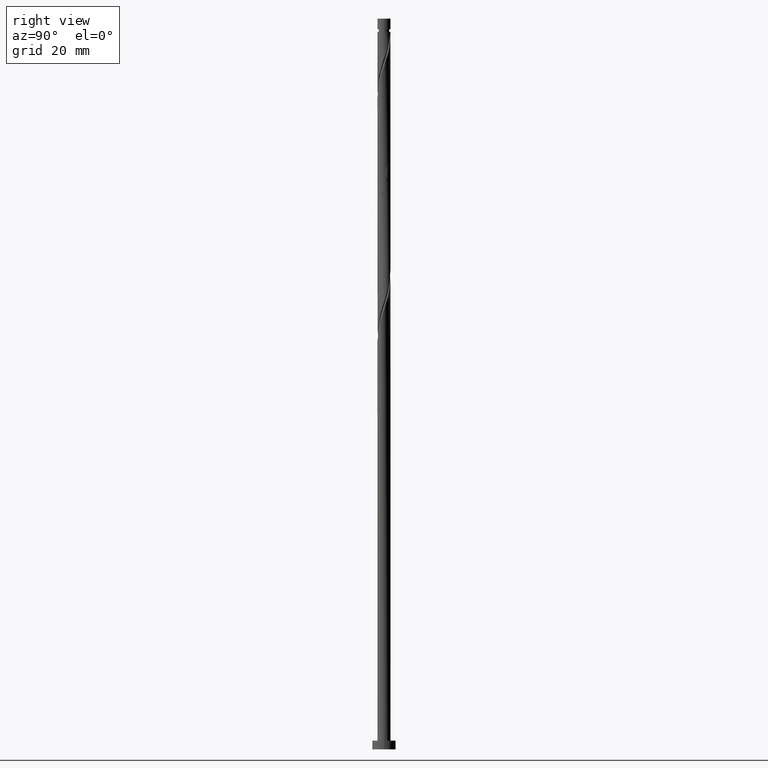
[diagram: clean part render]
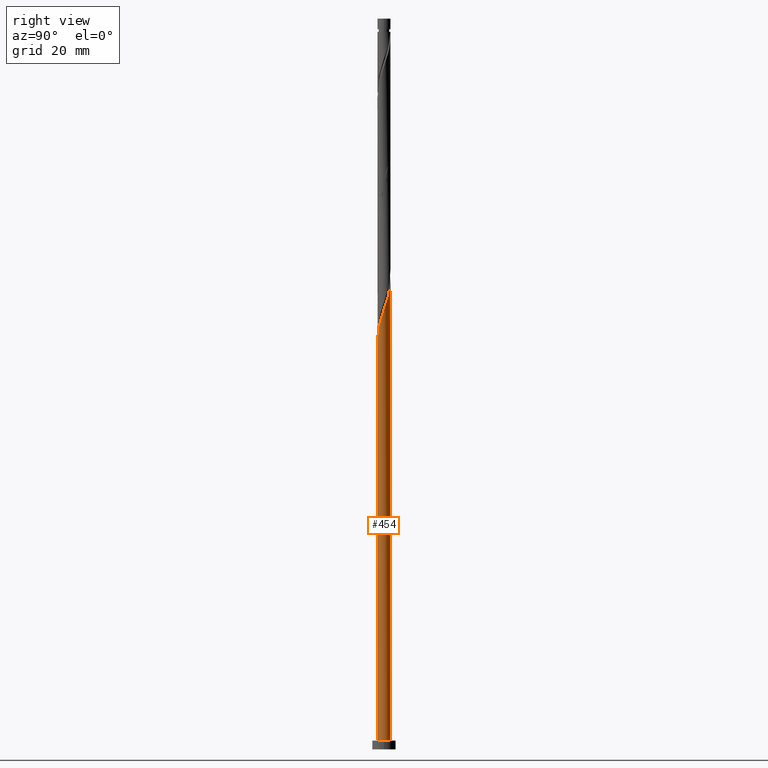
[diagram: same view with one face highlighted and labeled with its STEP entity id]
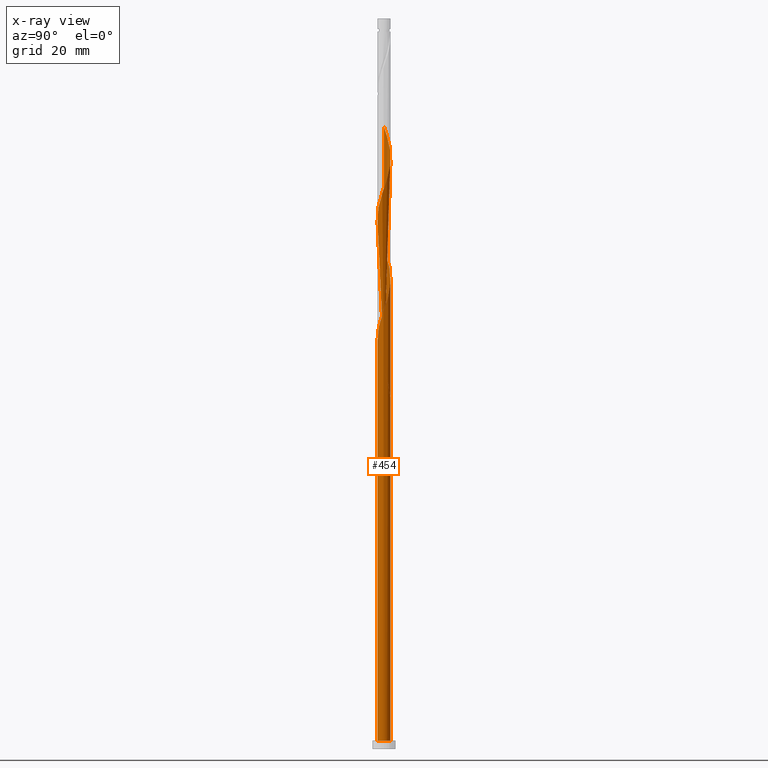
[diagram: x-ray of the same camera — body ghosted, the highlighted face saturated]
A machine part, right view. The second image highlights one B-rep face of the part: STEP entity #454.
The next image is the same camera in x-ray: the body ghosted, the highlighted face saturated — about 0% of this face is hidden behind the body in this view.
In plain terms, the highlighted cylindrical surface (bore or boss wall) has radius 2.25 mm, axis along (-0, -0, -1).
Its self-contained STEP definition (entity closure, byte-faithful):
#6 = CARTESIAN_POINT ( 'NONE',  ( 0.09295733002888968699, 2.248078943185473300, 160.5468287181052744 ) ) ;
#16 = CARTESIAN_POINT ( 'NONE',  ( 1.961678465785108960, -1.135321779518358776, 146.9250338463103844 ) ) ;
#27 = CARTESIAN_POINT ( 'NONE',  ( -2.048711887975463775, -0.9694934482717043611, 132.5019569232334504 ) ) ;
#34 = CARTESIAN_POINT ( 'NONE',  ( 2.221195012488833775, 0.4510328842429133789, 193.3993928206693340 ) ) ;
#41 = CARTESIAN_POINT ( 'NONE',  ( 0.8905897954905769298, 2.084223539436641737, 199.8096492309257428 ) ) ;
#46 = CARTESIAN_POINT ( 'NONE',  ( -2.176375940620510985, 0.6328710068109740794, 169.3609312822078437 ) ) ;
#50 = CARTESIAN_POINT ( 'NONE',  ( 2.242892684540275461, 0.1786964063313325746, 192.5981107693872900 ) ) ;
#52 = CYLINDRICAL_SURFACE ( 'NONE', #291, 2.250000000000000000 ) ;
#57 = CARTESIAN_POINT ( 'NONE',  ( -1.421172524092398470, 1.744353363503180265, 165.3545210257976237 ) ) ;
#80 = CARTESIAN_POINT ( 'NONE',  ( -2.134953450232146555, 0.7102631662573091198, 130.0981107693873184 ) ) ;
#91 = CARTESIAN_POINT ( 'NONE',  ( -1.757165075297675516, 1.431610577052242483, 127.6942646155411438 ) ) ;
#104 = DIRECTION ( 'NONE',  ( -2.739100365350735934E-29, -4.625929269271488320E-14, -1.000000000000000000 ) ) ;
#115 = CARTESIAN_POINT ( 'NONE',  ( -1.560331645388220112, -1.621069139919734337, 134.9058030770796393 ) ) ;
#128 = CARTESIAN_POINT ( 'NONE',  ( -0.8905897954905765967, -2.084223539436641737, 137.3096492309257428 ) ) ;
#138 = CARTESIAN_POINT ( 'NONE',  ( 0.4477443466979813547, 2.205000000000000515, 120.4827261540026768 ) ) ;
#148 = CARTESIAN_POINT ( 'NONE',  ( 2.250000000000000000, 0.000000000000000000, 3.000000000000000000 ) ) ;
#165 = CARTESIAN_POINT ( 'NONE',  ( 1.902938481636571311, 1.200552012661973977, 195.8032389745155797 ) ) ;
#173 = CARTESIAN_POINT ( 'NONE',  ( -0.8905897954905765967, -2.084223539436641737, 178.9763158975924284 ) ) ;
#174 = CIRCLE ( 'NONE', #399, 2.250000000000000000 ) ;
#178 = CARTESIAN_POINT ( 'NONE',  ( -1.632975368929374671, 1.571791777126894996, 166.1558030770796677 ) ) ;
#183 = CARTESIAN_POINT ( 'NONE',  ( 1.127044005484669764, 1.947375621111933519, 199.0083671796437272 ) ) ;
#189 = CARTESIAN_POINT ( 'NONE',  ( -1.421172524092398470, 1.744353363503180265, 207.0211876924642525 ) ) ;
#205 = ORIENTED_EDGE ( 'NONE', *, *, #948, .F. ) ;
#217 = CARTESIAN_POINT ( 'NONE',  ( 0.000000000000000000, 0.000000000000000000, 3.000000000000000000 ) ) ;
#221 = CARTESIAN_POINT ( 'NONE',  ( -0.3659235337506705488, 2.236791879818317508, 122.8865723078488656 ) ) ;
#256 = CARTESIAN_POINT ( 'NONE',  ( 1.421172524092398470, -1.744353363503180265, 144.5211876924643377 ) ) ;
#268 = CARTESIAN_POINT ( 'NONE',  ( 0.6282566646206253491, 2.160507709627481177, 158.9442646155411865 ) ) ;
#278 =( BOUNDED_CURVE ( )  B_SPLINE_CURVE ( 2, ( #1006, #910, #1281, #477, #80, #1436, #617, #91, #1669, #1015, #1151, #1537, #1407, #221, #360, #1187, #138 ),
 .UNSPECIFIED., .F., .T. ) 
 B_SPLINE_CURVE_WITH_KNOTS ( ( 3, 2, 2, 2, 2, 2, 2, 2, 3 ),
 ( 0.9295271625973833274, 0.9326923076923077094, 0.9423076923076922906, 0.9519230769230768718, 0.9615384615384615641, 0.9711538461538461453, 0.9807692307692307265, 0.9903846153846154188, 1.000000000000000000 ),
 .UNSPECIFIED. ) 
 CURVE ( )  GEOMETRIC_REPRESENTATION_ITEM ( )  RATIONAL_B_SPLINE_CURVE ( ( 0.9061636035682970602, 0.9069090390690857095, 0.9090909090909423673, 0.9024626128164456862, 0.9090909090909423673, 0.9024626128164456862, 0.9090909090909423673, 0.9024626128164456862, 0.9090909090909423673, 0.9024626128164456862, 0.9090909090909423673, 0.9024626128164456862, 0.9090909090909423673, 0.9024626128164456862, 0.9090909090909423673, 0.9024626128164456862, 0.9090909090909423673 ) ) 
 REPRESENTATION_ITEM ( '' )  );
#280 = CARTESIAN_POINT ( 'NONE',  ( 1.209369679255420493, -1.916914949879465091, 143.7199056411822085 ) ) ;
#289 = CARTESIAN_POINT ( 'NONE',  ( -0.4477443466979805220, 2.205000000000003180, 162.1493928206693909 ) ) ;
#291 = AXIS2_PLACEMENT_3D ( 'NONE', #685, #955, #589 ) ;
#306 = CARTESIAN_POINT ( 'NONE',  ( 1.757165075297677959, 1.431610577052242483, 196.6045210257975668 ) ) ;
#309 = CARTESIAN_POINT ( 'NONE',  ( -2.048711887975463775, -0.9694934482717043611, 174.1686235899002213 ) ) ;
#316 = CARTESIAN_POINT ( 'NONE',  ( -2.264590356591717146, 0.09364007158024659216, 170.9634953847719316 ) ) ;
#323 = CARTESIAN_POINT ( 'NONE',  ( -1.902938481636571311, -1.200552012661973755, 174.9699056411822369 ) ) ;
#331 = CARTESIAN_POINT ( 'NONE',  ( 2.069027203202810750, -0.8840963931646669272, 189.3929825642590856 ) ) ;
#351 = CARTESIAN_POINT ( 'NONE',  ( 0.000000000000000000, 0.000000000000000000, 3.000000000000000000 ) ) ;
#360 = CARTESIAN_POINT ( 'NONE',  ( -0.09295733002888713348, 2.248078943185470191, 122.0852902565667932 ) ) ;
#366 = CARTESIAN_POINT ( 'NONE',  ( 0.000000000000000000, 0.000000000000000000, 120.4827261540027905 ) ) ;
#368 = DIRECTION ( 'NONE',  ( -0.000000000000000000, -0.000000000000000000, -1.000000000000000000 ) ) ;
#381 = VECTOR ( 'NONE', #598, 1000.000000000000000 ) ;
#399 = AXIS2_PLACEMENT_3D ( 'NONE', #217, #1288, #1424 ) ;
#400 =( BOUNDED_CURVE ( )  B_SPLINE_CURVE ( 2, ( #1445, #1590, #829, #681, #920, #27, #525, #1602, #115, #672, #961, #128, #653, #662, #1471, #414, #944, #564, #1487, #280, #256, #1178, #1708, #16, #549, #1325, #402, #822, #1052, #931, #1082, #537, #1610, #1580, #426, #1062, #1459, #954, #268, #801, #6, #1477, #289, #1346, #1351, #711, #57, #178, #1354, #447, #1517, #46, #836, #316, #1122, #1236, #1375, #309, #323, #1361, #968, #1646, #444, #173, #846, #581, #854, #979, #1493, #842, #440, #1233, #697, #1367, #1113, #1107, #331, #703, #1510, #1632, #50, #34, #1504, #1497, #165, #306, #1250, #596, #183, #41, #989, #717, #574, #456, #1103, #1243, #1628, #587, #189, #1637, #975, #723, #465, #996, #1227, #569, #1099 ),
 .UNSPECIFIED., .F., .T. ) 
 B_SPLINE_CURVE_WITH_KNOTS ( ( 3, 2, 2, 2, 2, 2, 2, 2, 2, 2, 2, 2, 2, 2, 2, 2, 2, 2, 2, 2, 2, 2, 2, 2, 2, 2, 2, 2, 2, 2, 2, 2, 2, 2, 2, 2, 2, 2, 2, 2, 2, 2, 2, 2, 2, 2, 2, 2, 2, 2, 2, 2, 2, 3 ),
 ( 0.05452716259738286941, 0.05769230769230770939, 0.06730769230769229061, 0.07692307692307687184, 0.08653846153846156408, 0.09615384615384614531, 0.1057692307692307265, 0.1153846153846154188, 0.1250000000000000000, 0.1346153846153845812, 0.1442307692307692735, 0.1538461538461538547, 0.1634615384615384359, 0.1730769230769231282, 0.1826923076923077094, 0.1923076923076922906, 0.2019230769230768718, 0.2115384615384615641, 0.2211538461538461453, 0.2307692307692307265, 0.2403846153846154188, 0.2500000000000000000, 0.2596153846153845812, 0.2692307692307692735, 0.2788461538461538547, 0.2884615384615384359, 0.2980769230769231282, 0.3076923076923077094, 0.3173076923076922906, 0.3269230769230768718, 0.3365384615384615641, 0.3461538461538461453, 0.3557692307692307265, 0.3653846153846154188, 0.3750000000000000000, 0.3846153846153845812, 0.3942307692307692735, 0.4038461538461538547, 0.4134615384615384359, 0.4230769230769231282, 0.4326923076923077094, 0.4423076923076922906, 0.4519230769230768718, 0.4615384615384615641, 0.4711538461538461453, 0.4807692307692307265, 0.4903846153846154188, 0.5000000000000000000, 0.5096153846153845812, 0.5192307692307691624, 0.5288461538461538547, 0.5384615384615384359, 0.5480769230769231282, 0.5545271625973835494 ),
 .UNSPECIFIED. ) 
 CURVE ( )  GEOMETRIC_REPRESENTATION_ITEM ( )  RATIONAL_B_SPLINE_CURVE ( ( 0.9061636035683018342, 0.9069090390690903725, 0.9090909090909472523, 0.9024626128164506822, 0.9090909090909472523, 0.9024626128164506822, 0.9090909090909472523, 0.9024626128164506822, 0.9090909090909472523, 0.9024626128164506822, 0.9090909090909472523, 0.9024626128164506822, 0.9090909090909472523, 0.9024626128164506822, 0.9090909090909472523, 0.9024626128164506822, 0.9090909090909472523, 0.9024626128164506822, 0.9090909090909472523, 0.9024626128164506822, 0.9090909090909472523, 0.9024626128164506822, 0.9090909090909472523, 0.9024626128164506822, 0.9090909090909472523, 0.9024626128164506822, 0.9090909090909472523, 0.9024626128164506822, 0.9090909090909472523, 0.9024626128164506822, 0.9090909090909472523, 0.9024626128164506822, 0.9090909090909472523, 0.9024626128164506822, 0.9090909090909472523, 0.9024626128164506822, 0.9090909090909472523, 0.9024626128164506822, 0.9090909090909472523, 0.9024626128164506822, 0.9090909090909472523, 0.9024626128164506822, 0.9090909090909472523, 0.9024626128164506822, 0.9090909090909472523, 0.9024626128164506822, 0.9090909090909472523, 0.9024626128164506822, 0.9090909090909472523, 0.9024626128164506822, 0.9090909090909472523, 0.9024626128164506822, 0.9090909090909472523, 0.9024626128164506822, 0.9090909090909472523, 0.9024626128164506822, 0.9090909090909472523, 0.9024626128164506822, 0.9090909090909472523, 0.9024626128164506822, 0.9090909090909472523, 0.9024626128164506822, 0.9090909090909472523, 0.9024626128164506822, 0.9090909090909472523, 0.9024626128164506822, 0.9090909090909472523, 0.9024626128164506822, 0.9090909090909472523, 0.9024626128164506822, 0.9090909090909472523, 0.9024626128164506822, 0.9090909090909472523, 0.9024626128164506822, 0.9090909090909472523, 0.9024626128164506822, 0.9090909090909472523, 0.9024626128164506822, 0.9090909090909472523, 0.9024626128164506822, 0.9090909090909472523, 0.9024626128164506822, 0.9090909090909472523, 0.9024626128164506822, 0.9090909090909472523, 0.9024626128164506822, 0.9090909090909472523, 0.9024626128164506822, 0.9090909090909472523, 0.9024626128164506822, 0.9090909090909472523, 0.9024626128164506822, 0.9090909090909472523, 0.9024626128164506822, 0.9090909090909472523, 0.9024626128164506822, 0.9090909090909472523, 0.9024626128164506822, 0.9090909090909472523, 0.9024626128164506822, 0.9090909090909472523, 0.9024626128164506822, 0.9090909090909472523, 0.9024626128164506822, 0.9090909090909472523, 0.9046444828383071179, 0.9061636035683021673 ) ) 
 REPRESENTATION_ITEM ( '' )  );
#402 = CARTESIAN_POINT ( 'NONE',  ( 2.220483148606113399, -0.3632555391956108215, 149.3288800001566017 ) ) ;
#414 = CARTESIAN_POINT ( 'NONE',  ( 0.1800088736928951438, -2.259366006552627315, 140.5147774360539756 ) ) ;
#426 = CARTESIAN_POINT ( 'NONE',  ( 1.560331645388220112, 1.621069139919734114, 155.7391364104129536 ) ) ;
#431 = CARTESIAN_POINT ( 'NONE',  ( -2.250000000000000000, 0.000000000000000000, 3.000000000000000000 ) ) ;
#432 = EDGE_CURVE ( 'NONE', #499, #1472, #1520, .T. ) ;
#440 = CARTESIAN_POINT ( 'NONE',  ( 0.9624247494792431690, -2.033774471663422290, 184.5852902565667932 ) ) ;
#444 = CARTESIAN_POINT ( 'NONE',  ( -1.127044005484669320, -1.947375621111933519, 178.1750338463104413 ) ) ;
#447 = CARTESIAN_POINT ( 'NONE',  ( -1.961678465785108960, 1.135321779518358554, 167.7583671796436988 ) ) ;
#454 = ADVANCED_FACE ( 'NONE', ( #862 ), #52, .T. ) ;
#456 = CARTESIAN_POINT ( 'NONE',  ( -0.1800088736928948108, 2.259366006552627315, 203.0147774360539756 ) ) ;
#461 = ORIENTED_EDGE ( 'NONE', *, *, #1195, .F. ) ;
#465 = CARTESIAN_POINT ( 'NONE',  ( -2.069027203202810750, 0.8840963931646669272, 210.2263158975925137 ) ) ;
#477 = CARTESIAN_POINT ( 'NONE',  ( -2.221195012488831999, 0.4510328842429137675, 130.8993928206693624 ) ) ;
#499 = VERTEX_POINT ( 'NONE', #1124 ) ;
#525 = CARTESIAN_POINT ( 'NONE',  ( -1.902938481636571311, -1.200552012661973755, 133.3032389745155513 ) ) ;
#530 = ORIENTED_EDGE ( 'NONE', *, *, #1016, .F. ) ;
#537 = CARTESIAN_POINT ( 'NONE',  ( 2.048711887975464219, 0.9694934482717033619, 153.3352902565667648 ) ) ;
#549 = CARTESIAN_POINT ( 'NONE',  ( 2.069027203202810750, -0.8840963931646669272, 147.7263158975924568 ) ) ;
#564 = CARTESIAN_POINT ( 'NONE',  ( 0.7154798197030651785, -2.150633993447379488, 142.1173415386180636 ) ) ;
#569 = CARTESIAN_POINT ( 'NONE',  ( -2.250000000000004441, 0.1828269867083453237, 212.3651035407625045 ) ) ;
#574 = CARTESIAN_POINT ( 'NONE',  ( 0.09295733002888968699, 2.248078943185473300, 202.2134953847719601 ) ) ;
#581 = CARTESIAN_POINT ( 'NONE',  ( -0.3659235337506719365, -2.236791879818319284, 180.5788800001565733 ) ) ;
#587 = CARTESIAN_POINT ( 'NONE',  ( -1.209369679255421381, 1.916914949879465091, 206.2199056411821800 ) ) ;
#589 = DIRECTION ( 'NONE',  ( -1.000000000000000000, 0.000000000000000000, 0.000000000000000000 ) ) ;
#596 = CARTESIAN_POINT ( 'NONE',  ( 1.363498215478762932, 1.810527702787223303, 198.2070851283615980 ) ) ;
#598 = DIRECTION ( 'NONE',  ( -0.000000000000000000, -0.000000000000000000, -1.000000000000000000 ) ) ;
#600 = ORIENTED_EDGE ( 'NONE', *, *, #1267, .T. ) ;
#617 = CARTESIAN_POINT ( 'NONE',  ( -1.902938481636567980, 1.200552012661972867, 128.4955466668231736 ) ) ;
#650 = CARTESIAN_POINT ( 'NONE',  ( -0.4477443466979804665, 2.205000000000003180, 120.4827261540026768 ) ) ;
#653 = CARTESIAN_POINT ( 'NONE',  ( -0.6282566646206242389, -2.160507709627481177, 138.1109312822078437 ) ) ;
#656 = ORIENTED_EDGE ( 'NONE', *, *, #969, .T. ) ;
#662 = CARTESIAN_POINT ( 'NONE',  ( -0.3659235337506719365, -2.236791879818319284, 138.9122133334898592 ) ) ;
#672 = CARTESIAN_POINT ( 'NONE',  ( -1.363498215478761377, -1.810527702787224413, 135.7070851283616548 ) ) ;
#681 = CARTESIAN_POINT ( 'NONE',  ( -2.221195012488833775, -0.4510328842429137119, 130.8993928206693624 ) ) ;
#685 = CARTESIAN_POINT ( 'NONE',  ( 0.000000000000000000, 0.000000000000000000, 250.0000000000000000 ) ) ;
#688 = VERTEX_POINT ( 'NONE', #890 ) ;
#697 = CARTESIAN_POINT ( 'NONE',  ( 1.421172524092398470, -1.744353363503180265, 186.1878543591309665 ) ) ;
#703 = CARTESIAN_POINT ( 'NONE',  ( 2.176375940620510985, -0.6328710068109751896, 190.1942646155411296 ) ) ;
#711 = CARTESIAN_POINT ( 'NONE',  ( -1.209369679255421381, 1.916914949879465091, 164.5532389745155797 ) ) ;
#717 = CARTESIAN_POINT ( 'NONE',  ( 0.3659235337506721586, 2.236791879818319284, 201.4122133334898308 ) ) ;
#723 = CARTESIAN_POINT ( 'NONE',  ( -1.961678465785108960, 1.135321779518358554, 209.4250338463103844 ) ) ;
#727 = CARTESIAN_POINT ( 'NONE',  ( -1.632975368929374671, 1.571791777126894996, 124.4891364104129536 ) ) ;
#737 = CARTESIAN_POINT ( 'NONE',  ( -2.250000000000003109, -1.921838101527299037E-15, 129.5714709447775022 ) ) ;
#740 = ORIENTED_EDGE ( 'NONE', *, *, #1320, .T. ) ;
#759 = DIRECTION ( 'NONE',  ( 0.000000000000000000, 1.000000000000000000, -4.934324553889584764E-14 ) ) ;
#801 = CARTESIAN_POINT ( 'NONE',  ( 0.3659235337506721586, 2.236791879818319284, 159.7455466668232020 ) ) ;
#812 = CARTESIAN_POINT ( 'NONE',  ( -2.250000000000000888, 2.721980813058135221E-15, 132.2273146965612511 ) ) ;
#822 = CARTESIAN_POINT ( 'NONE',  ( 2.264590356591717146, -0.09364007158024638400, 150.1301620514385888 ) ) ;
#829 = CARTESIAN_POINT ( 'NONE',  ( -2.242892684540275461, -0.1786964063313333517, 130.0981107693873469 ) ) ;
#836 = CARTESIAN_POINT ( 'NONE',  ( -2.220483148606113399, 0.3632555391956106550, 170.1622133334898876 ) ) ;
#842 = CARTESIAN_POINT ( 'NONE',  ( 0.7154798197030651785, -2.150633993447379488, 183.7840082052846924 ) ) ;
#846 = CARTESIAN_POINT ( 'NONE',  ( -0.6282566646206242389, -2.160507709627481177, 179.7775979488745293 ) ) ;
#850 = CARTESIAN_POINT ( 'NONE',  ( -2.176375940620510985, 0.6328710068109740794, 127.6942646155411438 ) ) ;
#854 = CARTESIAN_POINT ( 'NONE',  ( -0.09295733002888832697, -2.248078943185473744, 181.3801620514386173 ) ) ;
#856 = CARTESIAN_POINT ( 'NONE',  ( -2.250000000000001776, 0.1828269867083644751, 129.0317702074291617 ) ) ;
#862 = FACE_OUTER_BOUND ( 'NONE', #1705, .T. ) ;
#863 = CARTESIAN_POINT ( 'NONE',  ( -0.7154798197030657336, 2.150633993447379488, 121.2840082052847350 ) ) ;
#871 = DIRECTION ( 'NONE',  ( 1.000000000000000000, 0.000000000000000000, 0.000000000000000000 ) ) ;
#872 = CARTESIAN_POINT ( 'NONE',  ( -1.421172524092398470, 1.744353363503180265, 123.6878543591309096 ) ) ;
#890 = CARTESIAN_POINT ( 'NONE',  ( -2.250000000000003109, 1.794712623994364604E-16, 212.9048042781108165 ) ) ;
#900 = DIRECTION ( 'NONE',  ( 0.000000000000000000, 0.000000000000000000, 1.000000000000000000 ) ) ;
#910 = CARTESIAN_POINT ( 'NONE',  ( -2.250000000000000888, 0.08948954325773056384, 131.9631437809283057 ) ) ;
#920 = CARTESIAN_POINT ( 'NONE',  ( -2.134953450232150107, -0.7102631662573087867, 131.7006748719514349 ) ) ;
#927 = VECTOR ( 'NONE', #368, 1000.000000000000000 ) ;
#931 = CARTESIAN_POINT ( 'NONE',  ( 2.221195012488833775, 0.4510328842429133789, 151.7327261540026768 ) ) ;
#944 = CARTESIAN_POINT ( 'NONE',  ( 0.4477443466979807996, -2.205000000000003180, 141.3160594873360481 ) ) ;
#948 = EDGE_CURVE ( 'NONE', #688, #1038, #1132, .T. ) ;
#954 = CARTESIAN_POINT ( 'NONE',  ( 0.8905897954905769298, 2.084223539436641737, 158.1429825642590572 ) ) ;
#955 = DIRECTION ( 'NONE',  ( -0.000000000000000000, -0.000000000000000000, -1.000000000000000000 ) ) ;
#961 = CARTESIAN_POINT ( 'NONE',  ( -1.127044005484669320, -1.947375621111933519, 136.5083671796437272 ) ) ;
#968 = CARTESIAN_POINT ( 'NONE',  ( -1.560331645388220112, -1.621069139919734337, 176.5724697437462680 ) ) ;
#969 = EDGE_CURVE ( 'NONE', #1085, #1472, #1231, .T. ) ;
#975 = CARTESIAN_POINT ( 'NONE',  ( -1.797326917357241927, 1.353556778322627441, 208.6237517950283404 ) ) ;
#979 = CARTESIAN_POINT ( 'NONE',  ( 0.1800088736928951438, -2.259366006552627315, 182.1814441027206897 ) ) ;
#989 = CARTESIAN_POINT ( 'NONE',  ( 0.6282566646206253491, 2.160507709627481177, 200.6109312822078437 ) ) ;
#996 = CARTESIAN_POINT ( 'NONE',  ( -2.176375940620510985, 0.6328710068109740794, 211.0275979488745293 ) ) ;
#999 = CARTESIAN_POINT ( 'NONE',  ( -1.209369679255421381, 1.916914949879465091, 122.8865723078488514 ) ) ;
#1006 = CARTESIAN_POINT ( 'NONE',  ( -2.250000000000000888, 2.721980813058135221E-15, 132.2273146965612511 ) ) ;
#1015 = CARTESIAN_POINT ( 'NONE',  ( -1.363498215478759379, 1.810527702787222637, 126.0917005129770843 ) ) ;
#1016 = EDGE_CURVE ( 'NONE', #1038, #1329, #278, .T. ) ;
#1017 = CARTESIAN_POINT ( 'NONE',  ( -2.220483148606113399, 0.3632555391956106550, 128.4955466668232305 ) ) ;
#1038 = VERTEX_POINT ( 'NONE', #812 ) ;
#1047 = ORIENTED_EDGE ( 'NONE', *, *, #432, .F. ) ;
#1052 = CARTESIAN_POINT ( 'NONE',  ( 2.242892684540275461, 0.1786964063313325746, 150.9314441027206612 ) ) ;
#1062 = CARTESIAN_POINT ( 'NONE',  ( 1.363498215478762932, 1.810527702787223303, 156.5404184616949408 ) ) ;
#1082 = CARTESIAN_POINT ( 'NONE',  ( 2.134953450232150107, 0.7102631662573077875, 152.5340082052847492 ) ) ;
#1085 = VERTEX_POINT ( 'NONE', #148 ) ;
#1097 = AXIS2_PLACEMENT_3D ( 'NONE', #351, #900, #871 ) ;
#1099 = CARTESIAN_POINT ( 'NONE',  ( -2.250000000000003109, 1.794712623994364604E-16, 212.9048042781108165 ) ) ;
#1103 = CARTESIAN_POINT ( 'NONE',  ( -0.4477443466979805220, 2.205000000000003180, 203.8160594873360765 ) ) ;
#1107 = CARTESIAN_POINT ( 'NONE',  ( 1.961678465785108960, -1.135321779518358776, 188.5917005129770132 ) ) ;
#1113 = CARTESIAN_POINT ( 'NONE',  ( 1.797326917357241927, -1.353556778322627663, 187.7904184616950261 ) ) ;
#1122 = CARTESIAN_POINT ( 'NONE',  ( -2.242892684540275461, -0.1786964063313333517, 171.7647774360539756 ) ) ;
#1124 = CARTESIAN_POINT ( 'NONE',  ( -2.250000000000003109, -1.921838101527299037E-15, 129.5714709447775022 ) ) ;
#1132 = LINE ( 'NONE', #1274, #927 ) ;
#1151 = CARTESIAN_POINT ( 'NONE',  ( -1.127044005484666878, 1.947375621111931521, 125.2904184616949976 ) ) ;
#1178 = CARTESIAN_POINT ( 'NONE',  ( 1.632975368929374671, -1.571791777126895440, 145.3224697437462964 ) ) ;
#1187 = CARTESIAN_POINT ( 'NONE',  ( 0.1800088736928962541, 2.259366006552623762, 121.2840082052847634 ) ) ;
#1195 = EDGE_CURVE ( 'NONE', #499, #688, #400, .T. ) ;
#1222 =( BOUNDED_CURVE ( )  B_SPLINE_CURVE ( 2, ( #1641, #863, #1371, #999, #872, #727, #1661, #1513, #1246, #850, #1017, #856, #737 ),
 .UNSPECIFIED., .F., .T. ) 
 B_SPLINE_CURVE_WITH_KNOTS ( ( 3, 2, 2, 2, 2, 2, 3 ),
 ( 0.000000000000000000, 0.009615384615384581224, 0.01923076923076927347, 0.02884615384615385816, 0.03846153846153843592, 0.04807692307692312816, 0.05452716259738286941 ),
 .UNSPECIFIED. ) 
 CURVE ( )  GEOMETRIC_REPRESENTATION_ITEM ( )  RATIONAL_B_SPLINE_CURVE ( ( 0.9090909090909472523, 0.9024626128164506822, 0.9090909090909472523, 0.9024626128164506822, 0.9090909090909472523, 0.9024626128164506822, 0.9090909090909472523, 0.9024626128164506822, 0.9090909090909472523, 0.9024626128164506822, 0.9090909090909472523, 0.9046444828383075620, 0.9061636035683018342 ) ) 
 REPRESENTATION_ITEM ( '' )  );
#1227 = CARTESIAN_POINT ( 'NONE',  ( -2.220483148606113399, 0.3632555391956106550, 211.8288800001565733 ) ) ;
#1231 = CIRCLE ( 'NONE', #1097, 2.250000000000000000 ) ;
#1233 = CARTESIAN_POINT ( 'NONE',  ( 1.209369679255420493, -1.916914949879465091, 185.3865723078488372 ) ) ;
#1236 = CARTESIAN_POINT ( 'NONE',  ( -2.221195012488833775, -0.4510328842429137119, 172.5660594873360196 ) ) ;
#1237 = CARTESIAN_POINT ( 'NONE',  ( -2.250000000000000000, 0.000000000000000000, 250.0000000000000000 ) ) ;
#1243 = CARTESIAN_POINT ( 'NONE',  ( -0.7154798197030657336, 2.150633993447379488, 204.6173415386180920 ) ) ;
#1246 = CARTESIAN_POINT ( 'NONE',  ( -2.069027203202810750, 0.8840963931646669272, 126.8929825642591283 ) ) ;
#1250 = CARTESIAN_POINT ( 'NONE',  ( 1.560331645388220112, 1.621069139919734114, 197.4058030770796677 ) ) ;
#1267 = EDGE_CURVE ( 'NONE', #1472, #1085, #174, .T. ) ;
#1274 = CARTESIAN_POINT ( 'NONE',  ( -2.250000000000000000, 0.000000000000000000, 250.0000000000000000 ) ) ;
#1281 = CARTESIAN_POINT ( 'NONE',  ( -2.242892684540271908, 0.1786964063313341289, 131.7006748719513780 ) ) ;
#1288 = DIRECTION ( 'NONE',  ( 0.000000000000000000, 0.000000000000000000, 1.000000000000000000 ) ) ;
#1310 = ORIENTED_EDGE ( 'NONE', *, *, #432, .T. ) ;
#1320 = EDGE_CURVE ( 'NONE', #1431, #1329, #1358, .T. ) ;
#1325 = CARTESIAN_POINT ( 'NONE',  ( 2.176375940620510985, -0.6328710068109751896, 148.5275979488745293 ) ) ;
#1329 = VERTEX_POINT ( 'NONE', #1674 ) ;
#1346 = CARTESIAN_POINT ( 'NONE',  ( -0.7154798197030657336, 2.150633993447379488, 162.9506748719514633 ) ) ;
#1351 = CARTESIAN_POINT ( 'NONE',  ( -0.9624247494792438351, 2.033774471663422290, 163.7519569232334788 ) ) ;
#1354 = CARTESIAN_POINT ( 'NONE',  ( -1.797326917357241927, 1.353556778322627441, 166.9570851283616832 ) ) ;
#1358 = CIRCLE ( 'NONE', #1592, 2.250000000000000000 ) ;
#1361 = CARTESIAN_POINT ( 'NONE',  ( -1.757165075297677292, -1.431610577052243372, 175.7711876924642525 ) ) ;
#1367 = CARTESIAN_POINT ( 'NONE',  ( 1.632975368929374671, -1.571791777126895440, 186.9891364104128968 ) ) ;
#1371 = CARTESIAN_POINT ( 'NONE',  ( -0.9624247494792438351, 2.033774471663422290, 122.0852902565668501 ) ) ;
#1375 = CARTESIAN_POINT ( 'NONE',  ( -2.134953450232150107, -0.7102631662573087867, 173.3673415386181205 ) ) ;
#1407 = CARTESIAN_POINT ( 'NONE',  ( -0.6282566646206226846, 2.160507709627478512, 123.6878543591308954 ) ) ;
#1424 = DIRECTION ( 'NONE',  ( 1.000000000000000000, 0.000000000000000000, 0.000000000000000000 ) ) ;
#1431 = VERTEX_POINT ( 'NONE', #650 ) ;
#1436 = CARTESIAN_POINT ( 'NONE',  ( -2.048711887975461110, 0.9694934482717039170, 129.2968287181052744 ) ) ;
#1445 = CARTESIAN_POINT ( 'NONE',  ( -2.250000000000003109, -1.921838101527299037E-15, 129.5714709447775022 ) ) ;
#1459 = CARTESIAN_POINT ( 'NONE',  ( 1.127044005484669764, 1.947375621111933519, 157.3417005129770416 ) ) ;
#1471 = CARTESIAN_POINT ( 'NONE',  ( -0.09295733002888832697, -2.248078943185473744, 139.7134953847719316 ) ) ;
#1472 = VERTEX_POINT ( 'NONE', #431 ) ;
#1477 = CARTESIAN_POINT ( 'NONE',  ( -0.1800088736928948108, 2.259366006552627315, 161.3481107693873469 ) ) ;
#1487 = CARTESIAN_POINT ( 'NONE',  ( 0.9624247494792431690, -2.033774471663422290, 142.9186235899001645 ) ) ;
#1493 = CARTESIAN_POINT ( 'NONE',  ( 0.4477443466979807996, -2.205000000000003180, 182.9827261540027337 ) ) ;
#1497 = CARTESIAN_POINT ( 'NONE',  ( 2.048711887975464219, 0.9694934482717033619, 195.0019569232334504 ) ) ;
#1504 = CARTESIAN_POINT ( 'NONE',  ( 2.134953450232150107, 0.7102631662573077875, 194.2006748719514633 ) ) ;
#1510 = CARTESIAN_POINT ( 'NONE',  ( 2.220483148606113399, -0.3632555391956108215, 190.9955466668232589 ) ) ;
#1513 = CARTESIAN_POINT ( 'NONE',  ( -1.961678465785108960, 1.135321779518358554, 126.0917005129770558 ) ) ;
#1517 = CARTESIAN_POINT ( 'NONE',  ( -2.069027203202810750, 0.8840963931646669272, 168.5596492309257997 ) ) ;
#1520 = LINE ( 'NONE', #1237, #381 ) ;
#1523 = ORIENTED_EDGE ( 'NONE', *, *, #1578, .F. ) ;
#1537 = CARTESIAN_POINT ( 'NONE',  ( -0.8905897954905752645, 2.084223539436639960, 124.4891364104129678 ) ) ;
#1578 = EDGE_CURVE ( 'NONE', #1431, #499, #1222, .T. ) ;
#1580 = CARTESIAN_POINT ( 'NONE',  ( 1.757165075297677959, 1.431610577052242483, 154.9378543591308812 ) ) ;
#1590 = CARTESIAN_POINT ( 'NONE',  ( -2.250000000000004441, -0.08948954325771683871, 129.8356418604104476 ) ) ;
#1592 = AXIS2_PLACEMENT_3D ( 'NONE', #366, #104, #759 ) ;
#1602 = CARTESIAN_POINT ( 'NONE',  ( -1.757165075297677292, -1.431610577052243372, 134.1045210257975668 ) ) ;
#1610 = CARTESIAN_POINT ( 'NONE',  ( 1.902938481636571311, 1.200552012661973977, 154.1365723078488941 ) ) ;
#1628 = CARTESIAN_POINT ( 'NONE',  ( -0.9624247494792438351, 2.033774471663422290, 205.4186235899001645 ) ) ;
#1632 = CARTESIAN_POINT ( 'NONE',  ( 2.264590356591717146, -0.09364007158024638400, 191.7968287181052460 ) ) ;
#1637 = CARTESIAN_POINT ( 'NONE',  ( -1.632975368929374671, 1.571791777126894996, 207.8224697437462964 ) ) ;
#1641 = CARTESIAN_POINT ( 'NONE',  ( -0.4477443466979804665, 2.205000000000003180, 120.4827261540026768 ) ) ;
#1646 = CARTESIAN_POINT ( 'NONE',  ( -1.363498215478761377, -1.810527702787224413, 177.3737517950283404 ) ) ;
#1661 = CARTESIAN_POINT ( 'NONE',  ( -1.797326917357241927, 1.353556778322627441, 125.2904184616949976 ) ) ;
#1669 = CARTESIAN_POINT ( 'NONE',  ( -1.560331645388217225, 1.621069139919732782, 126.8929825642590998 ) ) ;
#1674 = CARTESIAN_POINT ( 'NONE',  ( 0.4477443466979813547, 2.205000000000000959, 120.4827261540026768 ) ) ;
#1705 = EDGE_LOOP ( 'NONE', ( #205, #461, #1310, #600, #656, #1047, #1523, #740, #530 ) ) ;
#1708 = CARTESIAN_POINT ( 'NONE',  ( 1.797326917357241927, -1.353556778322627663, 146.1237517950283404 ) ) ;